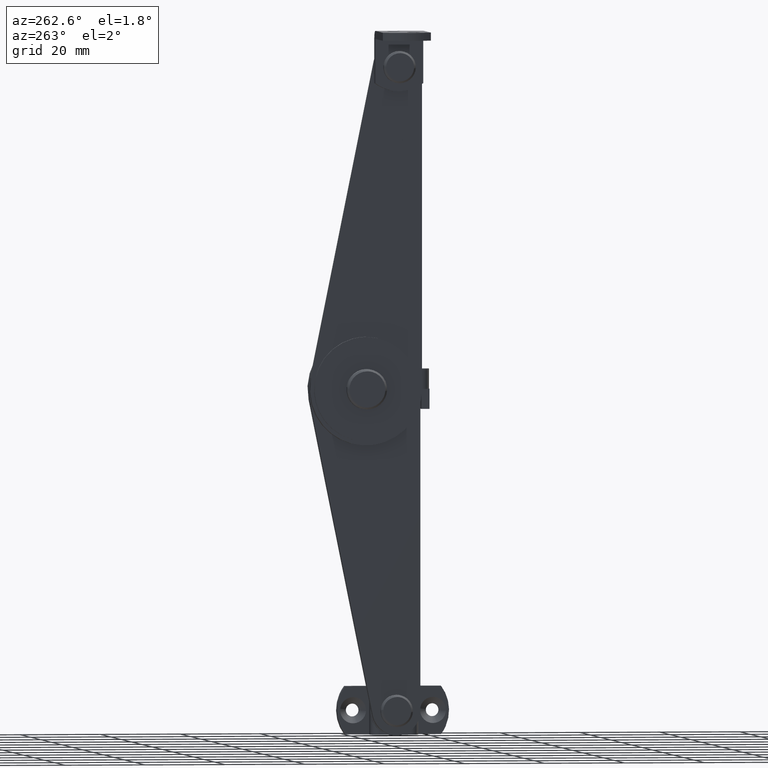
[diagram: clean part render]
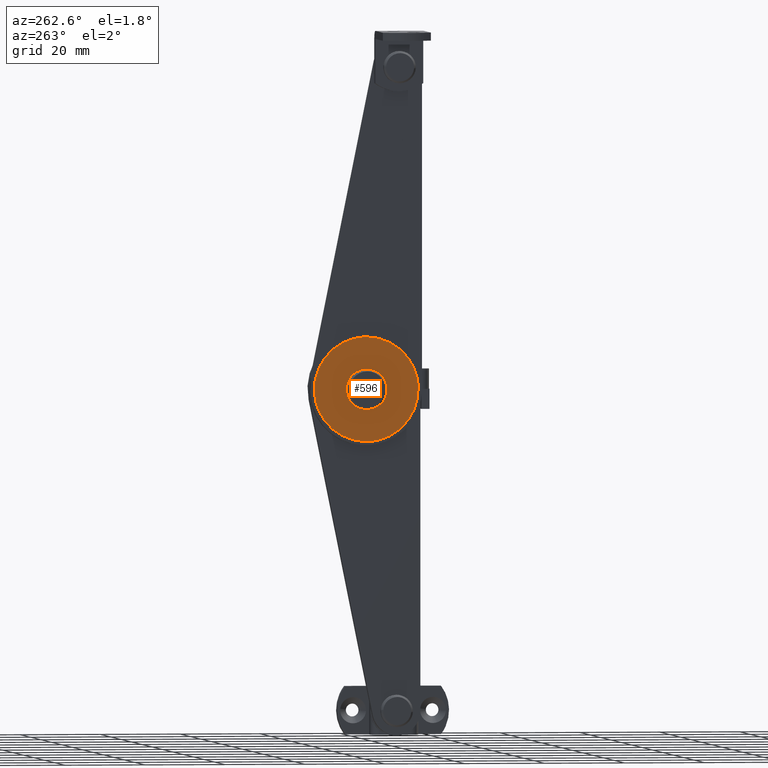
[diagram: same view with one face highlighted and labeled with its STEP entity id]
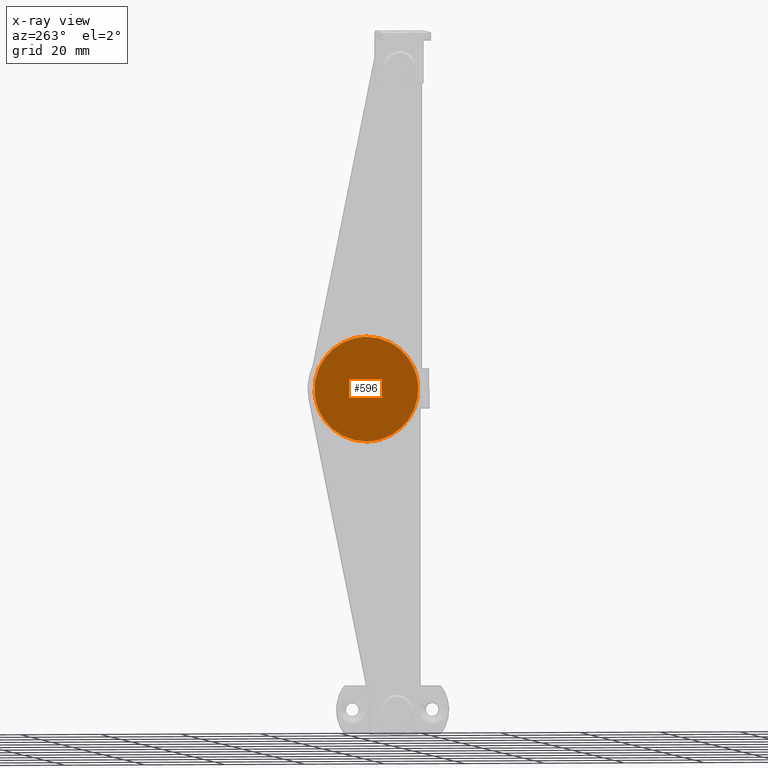
[diagram: x-ray of the same camera — body ghosted, the highlighted face saturated]
A machine part, auxiliary view. The second image highlights one B-rep face of the part: STEP entity #596.
The next image is the same camera in x-ray: the body ghosted, the highlighted face saturated — about 0% of this face is hidden behind the body in this view.
In plain terms, the highlighted face is a freeform B-spline surface patch.
Its self-contained STEP definition (entity closure, byte-faithful):
#233=CARTESIAN_POINT('',(-12.100037316634900,8.0,1.500000000000000));
#234=VERTEX_POINT('',#233);
#235=CARTESIAN_POINT('',(-12.100037316634900,6.504623985497426,0.117688466938626));
#236=VERTEX_POINT('',#235);
#237=CARTESIAN_POINT('',(-12.100037316634900,8.0,1.500000000000000));
#238=CARTESIAN_POINT('',(-12.100037316634904,6.613413933896785,1.500000000000000));
#239=CARTESIAN_POINT('',(-12.100037316634896,6.504623985497426,0.117688466938626));
#247=(BOUNDED_CURVE()B_SPLINE_CURVE(2,(#237,#238,#239),.UNSPECIFIED.,.F.,.U.)B_SPLINE_CURVE_WITH_KNOTS((3,3),(0.0,0.236331341134521),.UNSPECIFIED.)CURVE()GEOMETRIC_REPRESENTATION_ITEM()RATIONAL_B_SPLINE_CURVE((1.0,0.723120611154440,0.969723440695903))REPRESENTATION_ITEM(''));
#248=EDGE_CURVE('',#234,#236,#247,.T.);
#250=CARTESIAN_POINT('',(-12.100037316634900,9.495376014502574,-0.117688466938625));
#251=VERTEX_POINT('',#250);
#252=CARTESIAN_POINT('',(-12.100037316634895,9.495376014502574,-0.117688466938625));
#253=CARTESIAN_POINT('',(-12.100037316634900,9.500000000000000,-0.058934983038573));
#254=CARTESIAN_POINT('',(-12.100037316634900,9.500000000000000,4.898425E-016));
#255=CARTESIAN_POINT('',(-12.100037316634902,9.500000000000000,1.500000000000001));
#256=CARTESIAN_POINT('',(-12.100037316634900,8.0,1.500000000000000));
#264=(BOUNDED_CURVE()B_SPLINE_CURVE(2,(#252,#253,#254,#255,#256),.UNSPECIFIED.,.F.,.U.)B_SPLINE_CURVE_WITH_KNOTS((3,2,3),(0.736331341134521,0.750000000000000,1.0),.UNSPECIFIED.)CURVE()GEOMETRIC_REPRESENTATION_ITEM()RATIONAL_B_SPLINE_CURVE((0.969723440695903,0.983986170032108,1.0,0.707106781186548,1.0))REPRESENTATION_ITEM(''));
#265=EDGE_CURVE('',#251,#234,#264,.T.);
#332=CARTESIAN_POINT('',(-12.100037316634900,8.0,-1.500000000000000));
#333=VERTEX_POINT('',#332);
#334=CARTESIAN_POINT('',(-12.100037316634895,6.504623985497426,0.117688466938626));
#335=CARTESIAN_POINT('',(-12.100037316634900,6.500000000000001,0.058934983038574));
#336=CARTESIAN_POINT('',(-12.100037316634900,6.500000000000001,4.898425E-016));
#337=CARTESIAN_POINT('',(-12.100037316634902,6.500000000000003,-1.500000000000000));
#338=CARTESIAN_POINT('',(-12.100037316634900,8.0,-1.500000000000000));
#346=(BOUNDED_CURVE()B_SPLINE_CURVE(2,(#334,#335,#336,#337,#338),.UNSPECIFIED.,.F.,.U.)B_SPLINE_CURVE_WITH_KNOTS((3,2,3),(0.236331341134522,0.250000000000000,0.500000000000000),.UNSPECIFIED.)CURVE()GEOMETRIC_REPRESENTATION_ITEM()RATIONAL_B_SPLINE_CURVE((0.969723440695903,0.983986170032108,1.0,0.707106781186548,1.0))REPRESENTATION_ITEM(''));
#347=EDGE_CURVE('',#236,#333,#346,.T.);
#381=CARTESIAN_POINT('',(-12.100037316634900,8.0,-1.500000000000000));
#382=CARTESIAN_POINT('',(-12.100037316634904,9.386586066103217,-1.499999999999999));
#383=CARTESIAN_POINT('',(-12.100037316634898,9.495376014502574,-0.117688466938625));
#391=(BOUNDED_CURVE()B_SPLINE_CURVE(2,(#381,#382,#383),.UNSPECIFIED.,.F.,.U.)B_SPLINE_CURVE_WITH_KNOTS((3,3),(0.500000000000000,0.736331341134521),.UNSPECIFIED.)CURVE()GEOMETRIC_REPRESENTATION_ITEM()RATIONAL_B_SPLINE_CURVE((1.0,0.723120611154440,0.969723440695903))REPRESENTATION_ITEM(''));
#392=EDGE_CURVE('',#333,#251,#391,.T.);
#415=CARTESIAN_POINT('',(-12.100037316634900,8.0,13.0));
#416=VERTEX_POINT('',#415);
#417=CARTESIAN_POINT('',(-12.100037316634900,-4.959925338525174,1.019968244531696));
#418=VERTEX_POINT('',#417);
#419=CARTESIAN_POINT('',(-12.100037316634900,8.0,13.0));
#420=CARTESIAN_POINT('',(-12.100037316634900,-4.017076391427012,13.0));
#421=CARTESIAN_POINT('',(-12.100037316634896,-4.959925338525174,1.019968244531696));
#429=(BOUNDED_CURVE()B_SPLINE_CURVE(2,(#419,#420,#421),.UNSPECIFIED.,.F.,.U.)B_SPLINE_CURVE_WITH_KNOTS((3,3),(0.0,0.236331300630923),.UNSPECIFIED.)CURVE()GEOMETRIC_REPRESENTATION_ITEM()RATIONAL_B_SPLINE_CURVE((1.0,0.723120658607357,0.969723356167967))REPRESENTATION_ITEM(''));
#430=EDGE_CURVE('',#416,#418,#429,.T.);
#471=CARTESIAN_POINT('',(-12.100037316634900,20.959925338525171,-1.019968244531697));
#472=VERTEX_POINT('',#471);
#478=CARTESIAN_POINT('',(-12.100037316634904,20.959925338525171,-1.019968244531697));
#479=CARTESIAN_POINT('',(-12.100037316634905,20.999999999999993,-0.510771391169737));
#480=CARTESIAN_POINT('',(-12.100037316634900,21.0,4.898425E-016));
#481=CARTESIAN_POINT('',(-12.100037316634900,20.999999999999989,13.0));
#482=CARTESIAN_POINT('',(-12.100037316634900,8.0,13.0));
#490=(BOUNDED_CURVE()B_SPLINE_CURVE(2,(#478,#479,#480,#481,#482),.UNSPECIFIED.,.F.,.U.)B_SPLINE_CURVE_WITH_KNOTS((3,2,3),(0.736331300630923,0.750000000000000,1.0),.UNSPECIFIED.)CURVE()GEOMETRIC_REPRESENTATION_ITEM()RATIONAL_B_SPLINE_CURVE((0.969723356167967,0.983986122579190,1.0,0.707106781186547,1.0))REPRESENTATION_ITEM(''));
#491=EDGE_CURVE('',#472,#416,#490,.T.);
#514=CARTESIAN_POINT('',(-12.100037316634900,8.0,-13.0));
#515=VERTEX_POINT('',#514);
#516=CARTESIAN_POINT('',(-12.100037316634904,-4.959925338525174,1.019968244531696));
#517=CARTESIAN_POINT('',(-12.100037316634905,-4.999999999999999,0.510771391169737));
#518=CARTESIAN_POINT('',(-12.100037316634900,-4.999999999999999,4.898425E-016));
#519=CARTESIAN_POINT('',(-12.100037316634900,-4.999999999999999,-13.0));
#520=CARTESIAN_POINT('',(-12.100037316634900,8.0,-13.0));
#528=(BOUNDED_CURVE()B_SPLINE_CURVE(2,(#516,#517,#518,#519,#520),.UNSPECIFIED.,.F.,.U.)B_SPLINE_CURVE_WITH_KNOTS((3,2,3),(0.236331300630923,0.250000000000000,0.500000000000000),.UNSPECIFIED.)CURVE()GEOMETRIC_REPRESENTATION_ITEM()RATIONAL_B_SPLINE_CURVE((0.969723356167967,0.983986122579190,1.0,0.707106781186547,1.0))REPRESENTATION_ITEM(''));
#529=EDGE_CURVE('',#418,#515,#528,.T.);
#531=CARTESIAN_POINT('',(-12.100037316634900,8.0,-13.0));
#532=CARTESIAN_POINT('',(-12.100037316634898,20.017076391427032,-13.0));
#533=CARTESIAN_POINT('',(-12.100037316634896,20.959925338525178,-1.019968244531697));
#541=(BOUNDED_CURVE()B_SPLINE_CURVE(2,(#531,#532,#533),.UNSPECIFIED.,.F.,.U.)B_SPLINE_CURVE_WITH_KNOTS((3,3),(0.500000000000000,0.736331300630923),.UNSPECIFIED.)CURVE()GEOMETRIC_REPRESENTATION_ITEM()RATIONAL_B_SPLINE_CURVE((1.0,0.723120658607357,0.969723356167968))REPRESENTATION_ITEM(''));
#542=EDGE_CURVE('',#515,#472,#541,.T.);
#579=CARTESIAN_POINT('',(-12.100037316634900,-6.294731785448676,14.298699949606950));
#580=CARTESIAN_POINT('',(-12.100037316634900,22.294732482823019,14.298699949606950));
#581=CARTESIAN_POINT('',(-12.100037316634900,-6.294731785448676,-14.298700646981301));
#582=CARTESIAN_POINT('',(-12.100037316634900,22.294732482823019,-14.298700646981301));
#583=B_SPLINE_SURFACE_WITH_KNOTS('',1,1,((#579,#581),(#580,#582)),.UNSPECIFIED.,.F.,.F.,.U.,(2,2),(2,2),(0.0,28.589464268271691),(0.0,28.597400596588251),.UNSPECIFIED.);
#584=ORIENTED_EDGE('',*,*,#491,.F.);
#585=ORIENTED_EDGE('',*,*,#542,.F.);
#586=ORIENTED_EDGE('',*,*,#529,.F.);
#587=ORIENTED_EDGE('',*,*,#430,.F.);
#588=EDGE_LOOP('',(#584,#585,#586,#587));
#589=FACE_OUTER_BOUND('',#588,.T.);
#590=ORIENTED_EDGE('',*,*,#392,.T.);
#591=ORIENTED_EDGE('',*,*,#265,.T.);
#592=ORIENTED_EDGE('',*,*,#248,.T.);
#593=ORIENTED_EDGE('',*,*,#347,.T.);
#594=EDGE_LOOP('',(#590,#591,#592,#593));
#595=FACE_BOUND('',#594,.T.);
#596=ADVANCED_FACE('',(#589,#595),#583,.T.);